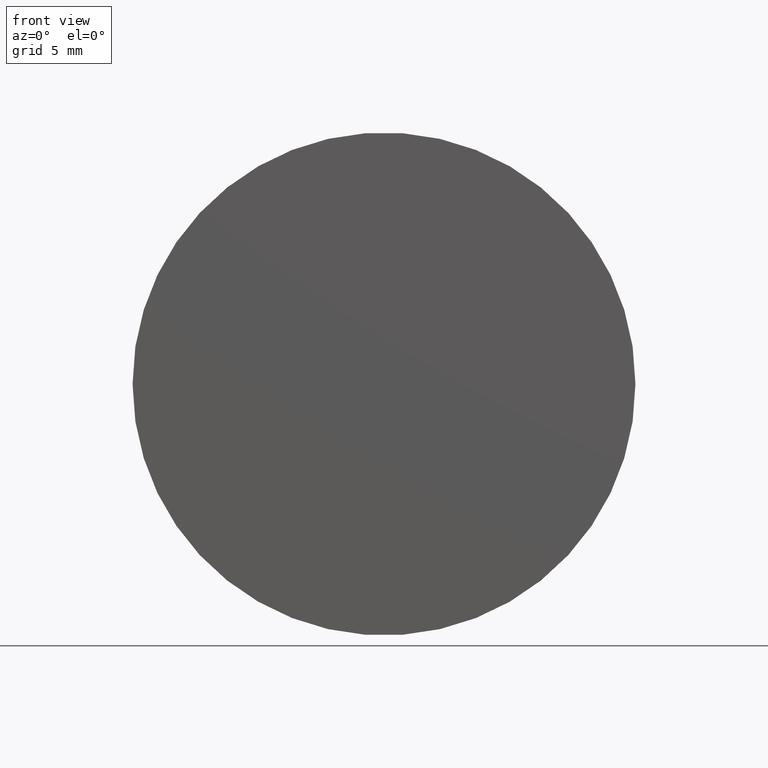
[diagram: clean part render]
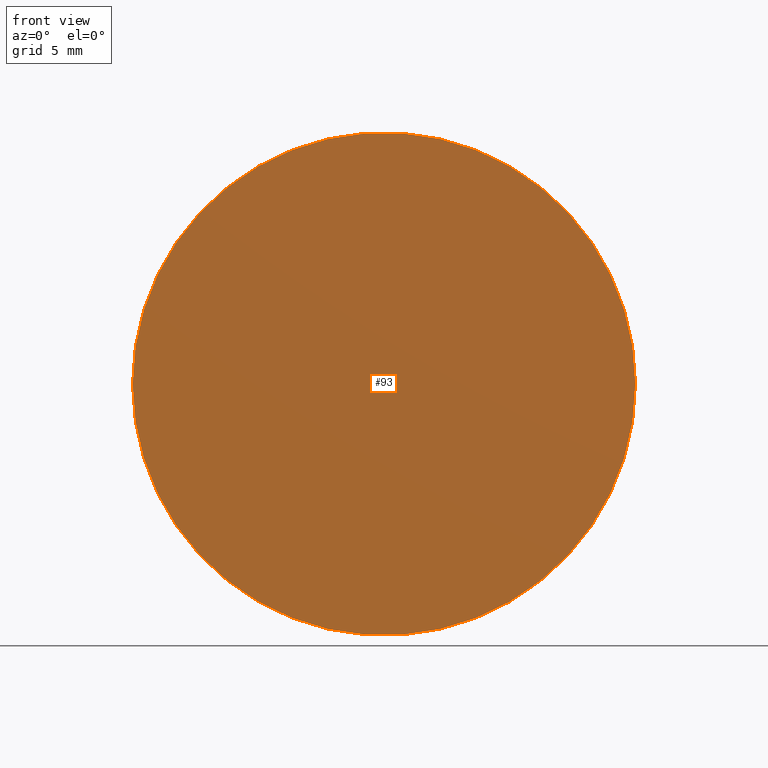
[diagram: same view with one face highlighted and labeled with its STEP entity id]
A machine part, front view. The second image highlights one B-rep face of the part: STEP entity #93.
In plain terms, the highlighted planar face has unit normal (0, 1, 0).
Its self-contained STEP definition (entity closure, byte-faithful):
#21=PLANE('',#110);
#35=FACE_OUTER_BOUND('',#49,.T.);
#49=EDGE_LOOP('',(#84));
#53=CIRCLE('',#102,11.5);
#60=VERTEX_POINT('',#153);
#67=EDGE_CURVE('',#60,#60,#53,.T.);
#84=ORIENTED_EDGE('',*,*,#67,.F.);
#93=ADVANCED_FACE('',(#35),#21,.F.);
#102=AXIS2_PLACEMENT_3D('',#154,#125,#126);
#110=AXIS2_PLACEMENT_3D('',#165,#141,#142);
#125=DIRECTION('center_axis',(0.,1.,0.));
#126=DIRECTION('ref_axis',(1.,0.,0.));
#141=DIRECTION('center_axis',(0.,1.,0.));
#142=DIRECTION('ref_axis',(0.,0.,1.));
#153=CARTESIAN_POINT('',(11.5,0.,0.));
#154=CARTESIAN_POINT('Origin',(0.,0.,0.));
#165=CARTESIAN_POINT('Origin',(0.,0.,0.));